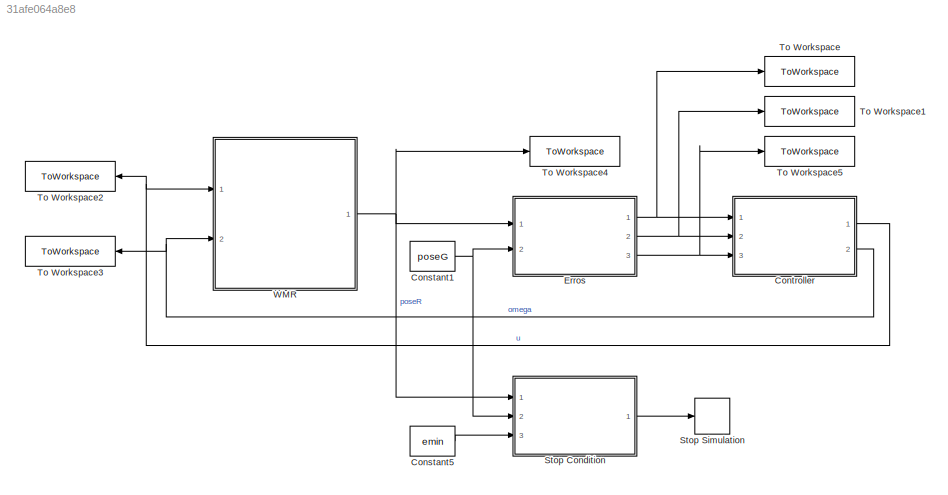
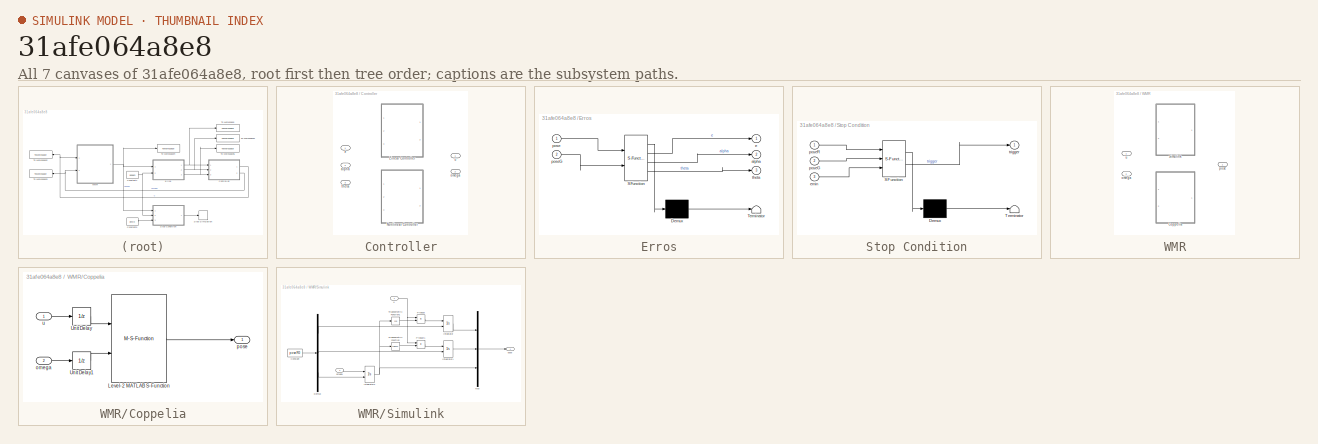
[diagram: thumbnail index - all 7 canvases of the model, root first then tree order]
MODEL slx_31afe064a8e8
KIND model
CONFIG AbsTol = auto
CONFIG EnableMultiTasking = off
CONFIG FixedStep = 5e-3
CONFIG MaxStep = auto
CONFIG MinStep = auto
CONFIG RelTol = 1e-3
CONFIG SampleTimeConstraint = Unconstrained
CONFIG SolverName = ode4
CONFIG StartTime = 0.0
CONFIG StopTime = 45
BLOCK [Constant] Constant1
  Value = poseG
BLOCK [Constant] Constant5
  Value = emin
BLOCK [SubSystem] Controller
  Ports = [3, 2]
  RequestExecContextInheritance = off
  Variant = on
BLOCK [ModelReference] Controller/Linear Controller
  DisableCoverage = on
  ModelNameDialog = controllerLinear
  ModelReferenceVersion = 1.1
  Ports = [3, 2]
  VariantControl = CONTROL_LINEAR
BLOCK [ModelReference] Controller/Nonlinear Controller
  ModelNameDialog = controllerNonlinear
  ModelReferenceVersion = 1.1
  Ports = [3, 2]
  VariantControl = CONTROL_NONLINEAR
BLOCK [Inport] Controller/alpha
  Port = 2
BLOCK [Inport] Controller/e
BLOCK [Outport] Controller/omega
  Port = 2
BLOCK [Inport] Controller/theta
  Port = 3
BLOCK [Outport] Controller/u
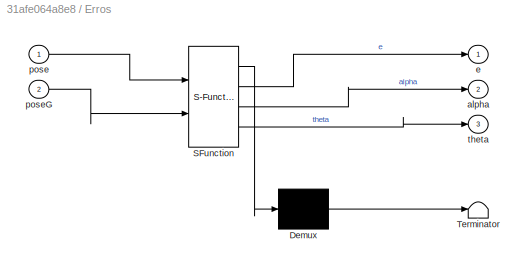
BLOCK [SubSystem] Erros
  ErrorFcn = Stateflow.Translate.translate
  PermitHierarchicalResolution = ExplicitOnly
  Ports = [2, 3]
  RequestExecContextInheritance = off
  SFBlockType = MATLAB Function
  TreatAsAtomicUnit = on
BLOCK [Demux] Erros/ Demux 
  Outputs = 1
  Ports = [1, 1]
BLOCK [S-Function] Erros/ SFunction 
  EnableBusSupport = on
  FunctionName = sf_sfun
  PortCounts = [2 4]
  Ports = [2, 4]
  SFcnIsStateOwnerBlock = off
  SFunctionDeploymentMode = off
  Tag = Stateflow S-Function 2
BLOCK [Terminator] Erros/ Terminator 
BLOCK [Outport] Erros/alpha
  Port = 2
BLOCK [Outport] Erros/e
BLOCK [Inport] Erros/pose
BLOCK [Inport] Erros/poseG
  Port = 2
BLOCK [Outport] Erros/theta
  Port = 3
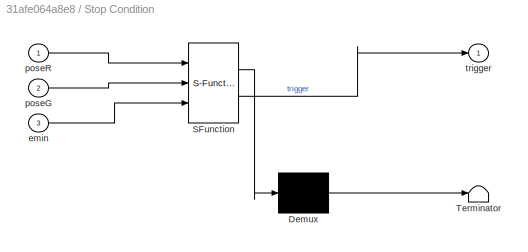
BLOCK [SubSystem] Stop Condition
  ErrorFcn = Stateflow.Translate.translate
  PermitHierarchicalResolution = ExplicitOnly
  Ports = [3, 1]
  RequestExecContextInheritance = off
  SFBlockType = MATLAB Function
  TreatAsAtomicUnit = on
BLOCK [Demux] Stop Condition/ Demux 
  Outputs = 1
  Ports = [1, 1]
BLOCK [S-Function] Stop Condition/ SFunction 
  EnableBusSupport = on
  FunctionName = sf_sfun
  PortCounts = [3 2]
  Ports = [3, 2]
  SFcnIsStateOwnerBlock = off
  SFunctionDeploymentMode = off
  Tag = Stateflow S-Function 3
BLOCK [Terminator] Stop Condition/ Terminator 
BLOCK [Inport] Stop Condition/emin
  Port = 3
BLOCK [Inport] Stop Condition/poseG
  Port = 2
BLOCK [Inport] Stop Condition/poseR
BLOCK [Outport] Stop Condition/trigger
BLOCK [Stop] Stop Simulation
BLOCK [ToWorkspace] To Workspace
  FixptAsFi = on
  MaxDataPoints = inf
  Ports = [1]
  SampleTime = -1
  SaveFormat = Timeseries
  VariableName = e
BLOCK [ToWorkspace] To Workspace1
  FixptAsFi = on
  MaxDataPoints = inf
  Ports = [1]
  SampleTime = -1
  SaveFormat = Timeseries
  VariableName = alpha
BLOCK [ToWorkspace] To Workspace2
  FixptAsFi = on
  MaxDataPoints = inf
  Ports = [1]
  SampleTime = -1
  SaveFormat = Timeseries
  VariableName = u
BLOCK [ToWorkspace] To Workspace3
  FixptAsFi = on
  MaxDataPoints = inf
  Ports = [1]
  SampleTime = -1
  SaveFormat = Timeseries
  VariableName = omega
BLOCK [ToWorkspace] To Workspace4
  FixptAsFi = on
  MaxDataPoints = inf
  Ports = [1]
  SampleTime = -1
  SaveFormat = Timeseries
  VariableName = poseR
BLOCK [ToWorkspace] To Workspace5
  FixptAsFi = on
  MaxDataPoints = inf
  Ports = [1]
  SampleTime = -1
  SaveFormat = Timeseries
  VariableName = theta
BLOCK [SubSystem] WMR
  Ports = [2, 1]
  RequestExecContextInheritance = off
  Variant = on
BLOCK [SubSystem] WMR/Coppelia
  Ports = [2, 1]
  RequestExecContextInheritance = off
  VariantControl = UNICYCLE_COPPELIA
BLOCK [M-S-Function] WMR/Coppelia/Level-2 MATLAB S-Function
  FunctionName = coppeliaScene
  Parameters = poseR0
  Ports = [2, 1]
BLOCK [UnitDelay] WMR/Coppelia/Unit Delay
  HasFrameUpgradeWarning = on
  SampleTime = -1
BLOCK [UnitDelay] WMR/Coppelia/Unit Delay1
  HasFrameUpgradeWarning = on
  SampleTime = -1
BLOCK [Inport] WMR/Coppelia/omega
  Port = 2
BLOCK [Outport] WMR/Coppelia/pose
BLOCK [Inport] WMR/Coppelia/u
BLOCK [SubSystem] WMR/Simulink
  Ports = [2, 1]
  RequestExecContextInheritance = off
  VariantControl = UNICYCLE_SIMULINK
BLOCK [Constant] WMR/Simulink/Constant
  Value = poseR0
BLOCK [Demux] WMR/Simulink/Demux
  Outputs = 3
  Ports = [1, 3]
BLOCK [Integrator] WMR/Simulink/Integrator
  InitialConditionSource = external
  Ports = [2, 1]
BLOCK [Integrator] WMR/Simulink/Integrator1
  InitialConditionSource = external
  Ports = [2, 1]
BLOCK [Integrator] WMR/Simulink/Integrator2
  InitialConditionSource = external
  Ports = [2, 1]
BLOCK [Mux] WMR/Simulink/Mux
  DisplayOption = bar
  Inputs = 3
  Ports = [3, 1]
BLOCK [Product] WMR/Simulink/Product
  Ports = [2, 1]
BLOCK [Product] WMR/Simulink/Product1
  Ports = [2, 1]
BLOCK [Trigonometry] WMR/Simulink/Trigonometric Function
  Ports = [1, 1]
BLOCK [Trigonometry] WMR/Simulink/Trigonometric Function1
  Operator = cos
  Ports = [1, 1]
BLOCK [Inport] WMR/Simulink/omega
  Port = 2
BLOCK [Outport] WMR/Simulink/pose
BLOCK [Inport] WMR/Simulink/u
BLOCK [Inport] WMR/omega
  Port = 2
BLOCK [Outport] WMR/pose
BLOCK [Inport] WMR/u
NET Constant1:1 -> Erros:2, Stop Condition:2
LINE Constant5:1 -> Stop Condition:3
NET Controller:1 -> To Workspace2:1, WMR:1
NET Controller:2 -> To Workspace3:1, WMR:2
NET Erros:1 -> Controller:1, To Workspace:1
NET Erros:2 -> Controller:2, To Workspace1:1
NET Erros:3 -> Controller:3, To Workspace5:1
LINE Stop Condition:1 -> Stop Simulation:1
LINE WMR/Coppelia/Level-2 MATLAB S-Function:1 -> WMR/Coppelia/pose:1
LINE WMR/Coppelia/Unit Delay1:1 -> WMR/Coppelia/Level-2 MATLAB S-Function:2
LINE WMR/Coppelia/Unit Delay:1 -> WMR/Coppelia/Level-2 MATLAB S-Function:1
LINE WMR/Coppelia/omega:1 -> WMR/Coppelia/Unit Delay1:1
LINE WMR/Coppelia/u:1 -> WMR/Coppelia/Unit Delay:1
LINE WMR/Simulink/Constant:1 -> WMR/Simulink/Demux:1
LINE WMR/Simulink/Demux:1 -> WMR/Simulink/Integrator:2
LINE WMR/Simulink/Demux:2 -> WMR/Simulink/Integrator1:2
LINE WMR/Simulink/Demux:3 -> WMR/Simulink/Integrator2:2
LINE WMR/Simulink/Integrator1:1 -> WMR/Simulink/Mux:2
NET WMR/Simulink/Integrator2:1 -> WMR/Simulink/Mux:3, WMR/Simulink/Trigonometric Function1:1, WMR/Simulink/Trigonometric Function:1
LINE WMR/Simulink/Integrator:1 -> WMR/Simulink/Mux:1
LINE WMR/Simulink/Mux:1 -> WMR/Simulink/pose:1
LINE WMR/Simulink/Product1:1 -> WMR/Simulink/Integrator1:1
LINE WMR/Simulink/Product:1 -> WMR/Simulink/Integrator:1
LINE WMR/Simulink/Trigonometric Function1:1 -> WMR/Simulink/Product:2
LINE WMR/Simulink/Trigonometric Function:1 -> WMR/Simulink/Product1:2
LINE WMR/Simulink/omega:1 -> WMR/Simulink/Integrator2:1
NET WMR/Simulink/u:1 -> WMR/Simulink/Product1:1, WMR/Simulink/Product:1
NET WMR:1 -> Erros:1, Stop Condition:1, To Workspace4:1
note: NET lines group one-source signal fan-out (src -> all destinations, sorted); 1:1 wires keep LINE
CHART Erros states=1 transitions=1
  STATE_LABEL 'eML_blk_kernel()'
  STATE_LABEL 'SCRIPT:\nfunction [e,alpha,theta] = errors(pose,poseG)\n\ndeltaX = poseG(1)-pose(1); deltaY = poseG(2)-pose(2);\nphi = pose(3); phiG = poseG(3);\n\ne = sqrt(deltaX^2 + deltaY^2);\nalpha = atan2(deltaY,deltaX) - phi;\ntheta = atan2(deltaY,deltaX) - phiG;\n'
CHART Stop Condition states=1 transitions=1
  STATE_LABEL 'eML_blk_kernel()'
  STATE_LABEL 'SCRIPT:\nfunction trigger = stopCondition(poseR,poseG,emin)\n\ntrigger = sqrt(sum((poseG-poseR).^2)) <= emin;\n'
CHART  states=0 transitions=0
CHART  states=0 transitions=0
